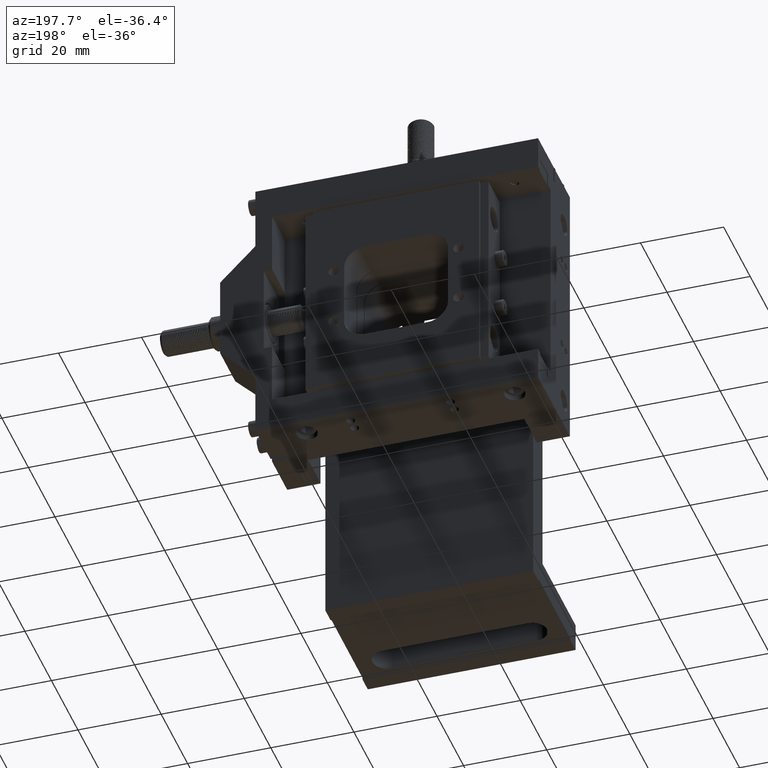
[diagram: clean part render]
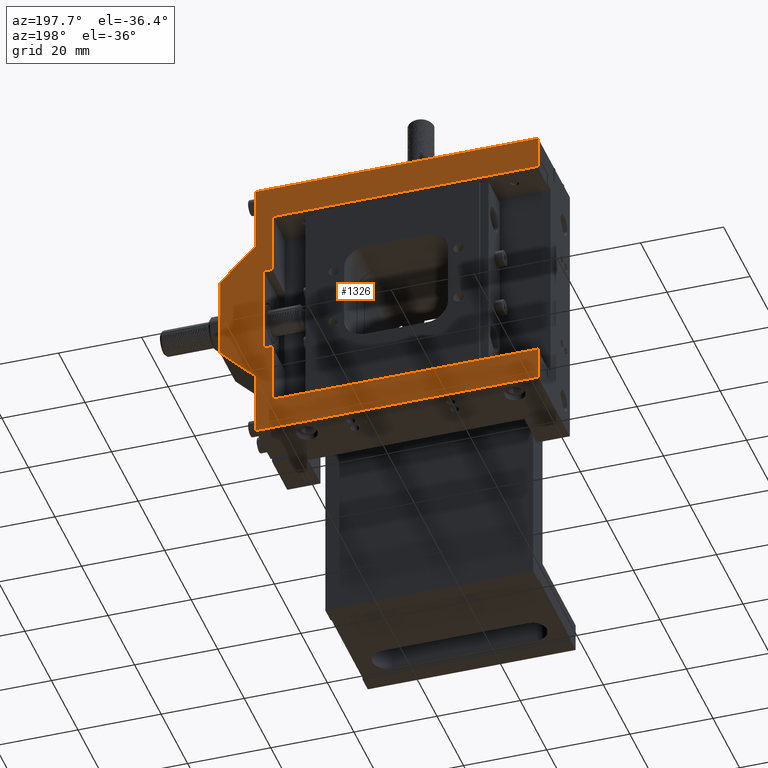
[diagram: same view with one face highlighted and labeled with its STEP entity id]
A machine part, auxiliary view. The second image highlights one B-rep face of the part: STEP entity #1326.
In plain terms, the highlighted planar face has unit normal (0, 1, 0).
Its self-contained STEP definition (entity closure, byte-faithful):
#1326=ADVANCED_FACE('',(#2851),#23559,.T.);
#2851=FACE_OUTER_BOUND('',#4490,.T.);
#4490=EDGE_LOOP('',(#10308,#10309,#10310,#10311,#10312,#10313,#10314,#10315,
#10316,#10317,#10318,#10319,#10320,#10321,#10322,#10323));
#10308=ORIENTED_EDGE('',*,*,#15212,.T.);
#10309=ORIENTED_EDGE('',*,*,#15213,.T.);
#10310=ORIENTED_EDGE('',*,*,#15210,.F.);
#10311=ORIENTED_EDGE('',*,*,#14786,.T.);
#10312=ORIENTED_EDGE('',*,*,#14790,.T.);
#10313=ORIENTED_EDGE('',*,*,#14794,.T.);
#10314=ORIENTED_EDGE('',*,*,#14797,.T.);
#10315=ORIENTED_EDGE('',*,*,#14802,.T.);
#10316=ORIENTED_EDGE('',*,*,#15214,.T.);
#10317=ORIENTED_EDGE('',*,*,#15215,.T.);
#10318=ORIENTED_EDGE('',*,*,#15216,.T.);
#10319=ORIENTED_EDGE('',*,*,#14818,.F.);
#10320=ORIENTED_EDGE('',*,*,#14808,.F.);
#10321=ORIENTED_EDGE('',*,*,#14816,.F.);
#10322=ORIENTED_EDGE('',*,*,#14812,.F.);
#10323=ORIENTED_EDGE('',*,*,#14823,.F.);
#14786=EDGE_CURVE('',#21368,#21374,#19031,.T.);
#14790=EDGE_CURVE('',#21374,#21377,#19033,.T.);
#14794=EDGE_CURVE('',#21377,#21380,#19037,.T.);
#14797=EDGE_CURVE('',#21380,#21382,#19040,.T.);
#14802=EDGE_CURVE('',#21382,#21385,#19045,.T.);
#14808=EDGE_CURVE('',#21391,#21392,#19051,.T.);
#14812=EDGE_CURVE('',#21395,#21396,#19055,.T.);
#14816=EDGE_CURVE('',#21396,#21391,#19059,.T.);
#14818=EDGE_CURVE('',#21392,#21399,#19061,.T.);
#14823=EDGE_CURVE('',#21402,#21395,#19066,.T.);
#15210=EDGE_CURVE('',#21368,#21681,#19409,.T.);
#15212=EDGE_CURVE('',#21402,#21682,#19411,.T.);
#15213=EDGE_CURVE('',#21682,#21681,#19412,.T.);
#15214=EDGE_CURVE('',#21385,#21683,#19413,.T.);
#15215=EDGE_CURVE('',#21683,#21684,#19414,.T.);
#15216=EDGE_CURVE('',#21684,#21399,#19415,.T.);
#19031=B_SPLINE_CURVE_WITH_KNOTS('',1,(#83433,#83434),.UNSPECIFIED.,.F.,
 .F.,(2,2),(-15.0000000000002,0.),.UNSPECIFIED.);
#19033=B_SPLINE_CURVE_WITH_KNOTS('',1,(#83447,#83448),.UNSPECIFIED.,.F.,
 .F.,(2,2),(-2.,0.),.UNSPECIFIED.);
#19037=B_SPLINE_CURVE_WITH_KNOTS('',1,(#83455,#83456),.UNSPECIFIED.,.F.,
 .F.,(2,2),(-22.,0.),.UNSPECIFIED.);
#19040=B_SPLINE_CURVE_WITH_KNOTS('',1,(#83461,#83462),.UNSPECIFIED.,.F.,
 .F.,(2,2),(-2.,0.),.UNSPECIFIED.);
#19045=B_SPLINE_CURVE_WITH_KNOTS('',1,(#83471,#83472),.UNSPECIFIED.,.F.,
 .F.,(2,2),(-14.9999999999998,0.),.UNSPECIFIED.);
#19051=B_SPLINE_CURVE_WITH_KNOTS('',1,(#83483,#83484),.UNSPECIFIED.,.F.,
 .F.,(2,2),(0.,12.0208152801713),.UNSPECIFIED.);
#19055=B_SPLINE_CURVE_WITH_KNOTS('',1,(#83491,#83492),.UNSPECIFIED.,.F.,
 .F.,(2,2),(0.,12.0208152801713),.UNSPECIFIED.);
#19059=B_SPLINE_CURVE_WITH_KNOTS('',1,(#83499,#83500),.UNSPECIFIED.,.F.,
 .F.,(2,2),(0.,20.),.UNSPECIFIED.);
#19061=B_SPLINE_CURVE_WITH_KNOTS('',1,(#83503,#83504),.UNSPECIFIED.,.F.,
 .F.,(2,2),(0.,15.5),.UNSPECIFIED.);
#19066=B_SPLINE_CURVE_WITH_KNOTS('',1,(#83513,#83514),.UNSPECIFIED.,.F.,
 .F.,(2,2),(0.,15.5),.UNSPECIFIED.);
#19409=B_SPLINE_CURVE_WITH_KNOTS('',1,(#84476,#84477),.UNSPECIFIED.,.F.,
 .F.,(2,2),(0.,64.),.UNSPECIFIED.);
#19411=B_SPLINE_CURVE_WITH_KNOTS('',1,(#84480,#84481),.UNSPECIFIED.,.F.,
 .F.,(2,2),(0.,68.0000000000001),.UNSPECIFIED.);
#19412=B_SPLINE_CURVE_WITH_KNOTS('',1,(#84482,#84483),.UNSPECIFIED.,.F.,
 .F.,(2,2),(0.,8.0000000000001),.UNSPECIFIED.);
#19413=B_SPLINE_CURVE_WITH_KNOTS('',1,(#84484,#84485),.UNSPECIFIED.,.F.,
 .F.,(2,2),(0.,64.),.UNSPECIFIED.);
#19414=B_SPLINE_CURVE_WITH_KNOTS('',1,(#84486,#84487),.UNSPECIFIED.,.F.,
 .F.,(2,2),(0.,8.00000000000001),.UNSPECIFIED.);
#19415=B_SPLINE_CURVE_WITH_KNOTS('',1,(#84488,#84489),.UNSPECIFIED.,.F.,
 .F.,(2,2),(0.,68.0000000000001),.UNSPECIFIED.);
#21368=VERTEX_POINT('',#67869);
#21374=VERTEX_POINT('',#67875);
#21377=VERTEX_POINT('',#67878);
#21380=VERTEX_POINT('',#67881);
#21382=VERTEX_POINT('',#67883);
#21385=VERTEX_POINT('',#67886);
#21391=VERTEX_POINT('',#67892);
#21392=VERTEX_POINT('',#67893);
#21395=VERTEX_POINT('',#67896);
#21396=VERTEX_POINT('',#67897);
#21399=VERTEX_POINT('',#67900);
#21402=VERTEX_POINT('',#67903);
#21681=VERTEX_POINT('',#68182);
#21682=VERTEX_POINT('',#68183);
#21683=VERTEX_POINT('',#68184);
#21684=VERTEX_POINT('',#68185);
#23559=PLANE('',#24801);
#24801=AXIS2_PLACEMENT_3D('',#50049,#26146,$);
#26146=DIRECTION('',(0.,1.,0.));
#50049=CARTESIAN_POINT('',(38.2700024047208,27.999993835614,29.0808218490965));
#67869=CARTESIAN_POINT('',(18.0000024047207,27.9999938356139,44.0008218490966));
#67875=CARTESIAN_POINT('',(18.0000024047208,27.999993835614,59.0008218490968));
#67878=CARTESIAN_POINT('',(20.0000024047208,27.999993835614,59.0008218490968));
#67881=CARTESIAN_POINT('',(20.0000024047208,27.999993835614,81.0008218490968));
#67883=CARTESIAN_POINT('',(18.0000024047208,27.999993835614,81.0008218490968));
#67886=CARTESIAN_POINT('',(18.0000024047207,27.999993835614,96.0008218490966));
#67892=CARTESIAN_POINT('',(30.5000024047208,27.999993835614,80.0008218490968));
#67893=CARTESIAN_POINT('',(22.0000024047208,27.999993835614,88.5008218490968));
#67896=CARTESIAN_POINT('',(22.0000024047208,27.999993835614,51.5008218490968));
#67897=CARTESIAN_POINT('',(30.5000024047208,27.999993835614,60.0008218490968));
#67900=CARTESIAN_POINT('',(22.0000024047208,27.999993835614,104.000821849097));
#67903=CARTESIAN_POINT('',(22.0000024047208,27.999993835614,36.0008218490968));
#68182=CARTESIAN_POINT('',(-45.9999975952793,27.999993835614,44.0008218490967));
#68183=CARTESIAN_POINT('',(-45.9999975952793,27.999993835614,36.0008218490966));
#68184=CARTESIAN_POINT('',(-45.9999975952793,27.999993835614,96.0008218490966));
#68185=CARTESIAN_POINT('',(-45.9999975952793,27.999993835614,104.000821849097));
#83433=CARTESIAN_POINT('',(18.0000024047207,27.9999938356139,44.0008218490966));
#83434=CARTESIAN_POINT('',(18.0000024047208,27.999993835614,59.0008218490968));
#83447=CARTESIAN_POINT('',(18.0000024047208,27.999993835614,59.0008218490968));
#83448=CARTESIAN_POINT('',(20.0000024047208,27.999993835614,59.0008218490968));
#83455=CARTESIAN_POINT('',(20.0000024047208,27.999993835614,59.0008218490968));
#83456=CARTESIAN_POINT('',(20.0000024047208,27.999993835614,81.0008218490968));
#83461=CARTESIAN_POINT('',(20.0000024047208,27.999993835614,81.0008218490968));
#83462=CARTESIAN_POINT('',(18.0000024047208,27.999993835614,81.0008218490968));
#83471=CARTESIAN_POINT('',(18.0000024047208,27.999993835614,81.0008218490968));
#83472=CARTESIAN_POINT('',(18.0000024047207,27.999993835614,96.0008218490966));
#83483=CARTESIAN_POINT('',(30.5000024047208,27.999993835614,80.0008218490968));
#83484=CARTESIAN_POINT('',(22.0000024047208,27.999993835614,88.5008218490968));
#83491=CARTESIAN_POINT('',(22.0000024047208,27.999993835614,51.5008218490968));
#83492=CARTESIAN_POINT('',(30.5000024047208,27.999993835614,60.0008218490968));
#83499=CARTESIAN_POINT('',(30.5000024047208,27.999993835614,60.0008218490968));
#83500=CARTESIAN_POINT('',(30.5000024047208,27.999993835614,80.0008218490968));
#83503=CARTESIAN_POINT('',(22.0000024047208,27.999993835614,88.5008218490968));
#83504=CARTESIAN_POINT('',(22.0000024047208,27.999993835614,104.000821849097));
#83513=CARTESIAN_POINT('',(22.0000024047208,27.999993835614,36.0008218490968));
#83514=CARTESIAN_POINT('',(22.0000024047208,27.999993835614,51.5008218490968));
#84476=CARTESIAN_POINT('',(18.0000024047207,27.9999938356139,44.0008218490966));
#84477=CARTESIAN_POINT('',(-45.9999975952793,27.999993835614,44.0008218490967));
#84480=CARTESIAN_POINT('',(22.0000024047208,27.999993835614,36.0008218490968));
#84481=CARTESIAN_POINT('',(-45.9999975952793,27.999993835614,36.0008218490966));
#84482=CARTESIAN_POINT('',(-45.9999975952793,27.999993835614,36.0008218490966));
#84483=CARTESIAN_POINT('',(-45.9999975952793,27.999993835614,44.0008218490967));
#84484=CARTESIAN_POINT('',(18.0000024047207,27.999993835614,96.0008218490966));
#84485=CARTESIAN_POINT('',(-45.9999975952793,27.999993835614,96.0008218490966));
#84486=CARTESIAN_POINT('',(-45.9999975952793,27.999993835614,96.0008218490966));
#84487=CARTESIAN_POINT('',(-45.9999975952793,27.999993835614,104.000821849097));
#84488=CARTESIAN_POINT('',(-45.9999975952793,27.999993835614,104.000821849097));
#84489=CARTESIAN_POINT('',(22.0000024047208,27.999993835614,104.000821849097));